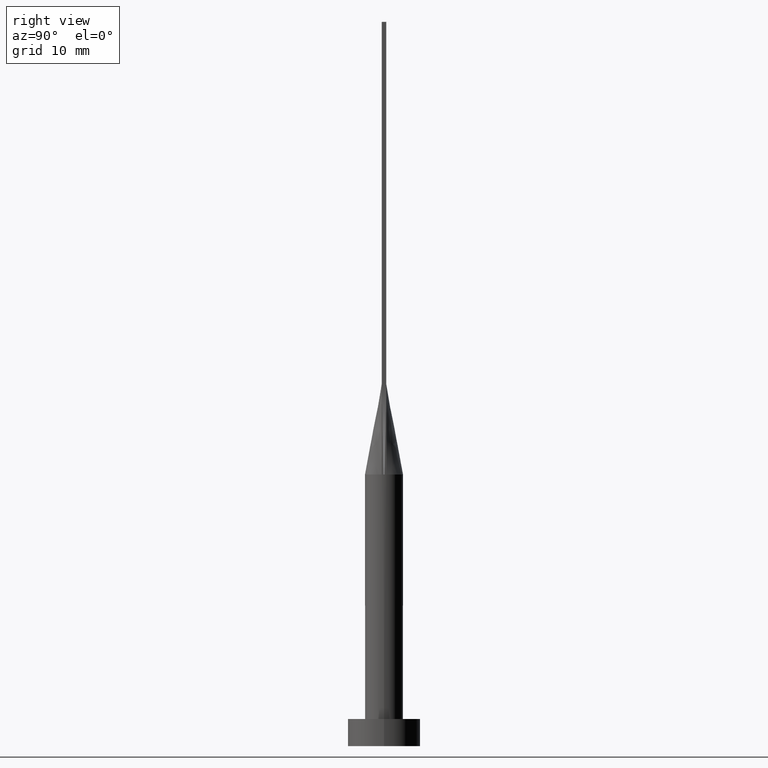
[diagram: clean part render]
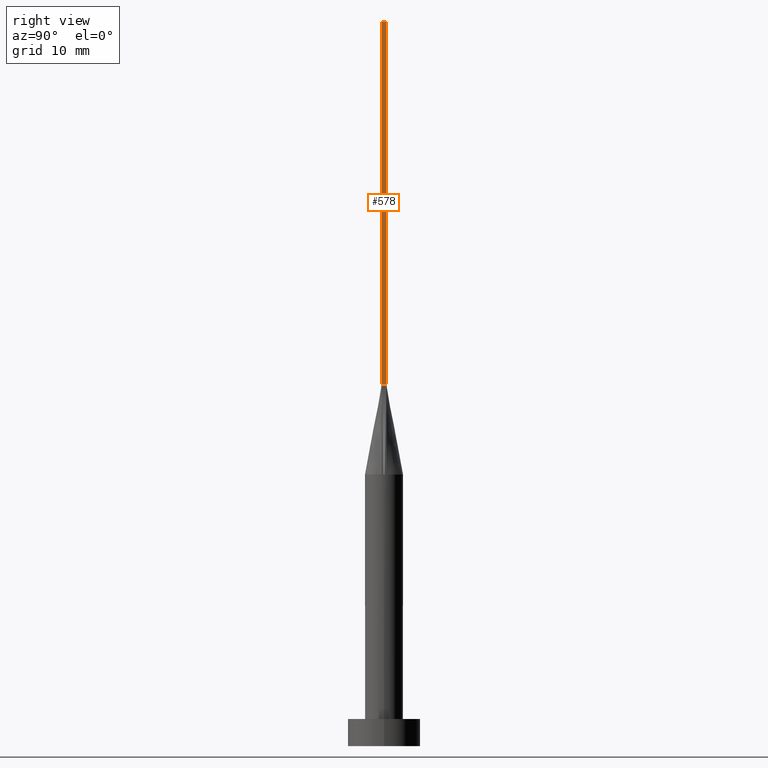
[diagram: same view with one face highlighted and labeled with its STEP entity id]
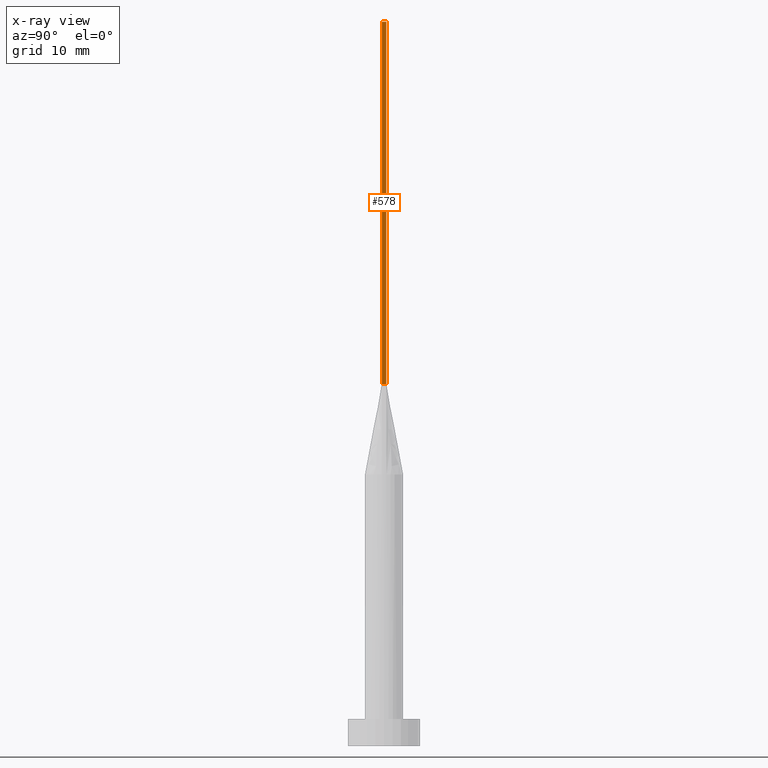
[diagram: x-ray of the same camera — body ghosted, the highlighted face saturated]
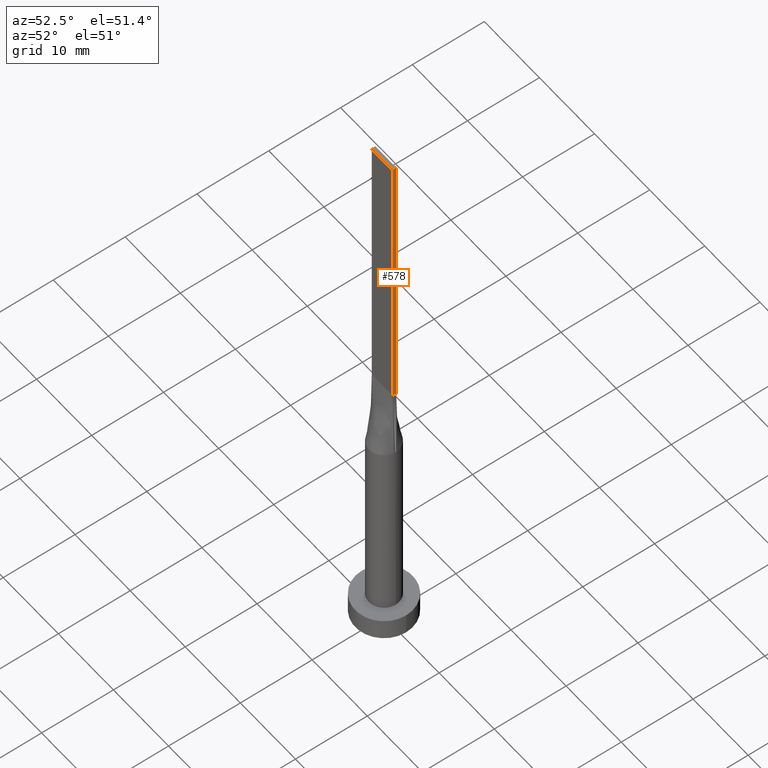
[diagram: same view with one face highlighted and labeled with its STEP entity id]
A machine part, right view. The second image highlights one B-rep face of the part: STEP entity #578.
The next image is the same camera in x-ray: the body ghosted, the highlighted face saturated — about 0% of this face is hidden behind the body in this view.
A second angle (auxiliary view) of the same face is appended — the face is thin or edge-on in the first view.
In plain terms, the highlighted planar face has unit normal (-1, 0, 0).
Its self-contained STEP definition (entity closure, byte-faithful):
#7 = ORIENTED_EDGE ( 'NONE', *, *, #185, .T. ) ;
#58 = LINE ( 'NONE', #168, #330 ) ;
#66 = FACE_OUTER_BOUND ( 'NONE', #135, .T. ) ;
#107 = CARTESIAN_POINT ( 'NONE',  ( 1.899999999999999911, 0.2500000000000002220, 80.00000000000000000 ) ) ;
#127 = ORIENTED_EDGE ( 'NONE', *, *, #187, .T. ) ;
#129 = ORIENTED_EDGE ( 'NONE', *, *, #433, .F. ) ;
#135 = EDGE_LOOP ( 'NONE', ( #127, #401, #129, #7 ) ) ;
#155 = CARTESIAN_POINT ( 'NONE',  ( 1.899999999999999023, -0.2499999999999997780, 80.00000000000000000 ) ) ;
#156 = DIRECTION ( 'NONE',  ( -1.000000000000000000, 1.734723475976807094E-15, 0.000000000000000000 ) ) ;
#168 = CARTESIAN_POINT ( 'NONE',  ( 1.899999999999999911, 0.2500000000000002220, 40.00000000000000000 ) ) ;
#173 = VERTEX_POINT ( 'NONE', #203 ) ;
#184 = DIRECTION ( 'NONE',  ( 1.734723475976807094E-15, 1.000000000000000000, 0.000000000000000000 ) ) ;
#185 = EDGE_CURVE ( 'NONE', #173, #524, #531, .T. ) ;
#187 = EDGE_CURVE ( 'NONE', #524, #446, #58, .T. ) ;
#188 = VECTOR ( 'NONE', #479, 1000.000000000000000 ) ;
#203 = CARTESIAN_POINT ( 'NONE',  ( 1.899999999999999023, -0.2499999999999997780, 80.00000000000000000 ) ) ;
#219 = CARTESIAN_POINT ( 'NONE',  ( 1.899999999999999911, 0.2500000000000002220, 80.00000000000000000 ) ) ;
#227 = AXIS2_PLACEMENT_3D ( 'NONE', #515, #156, #241 ) ;
#241 = DIRECTION ( 'NONE',  ( -1.734723475976807094E-15, -1.000000000000000000, 0.000000000000000000 ) ) ;
#288 = EDGE_CURVE ( 'NONE', #567, #446, #509, .T. ) ;
#303 = CARTESIAN_POINT ( 'NONE',  ( 1.899999999999999023, -0.2499999999999997780, 80.00000000000000000 ) ) ;
#311 = CARTESIAN_POINT ( 'NONE',  ( 1.899999999999999911, 0.2500000000000002220, 40.00000000000000000 ) ) ;
#330 = VECTOR ( 'NONE', #387, 1000.000000000000000 ) ;
#372 = PLANE ( 'NONE',  #227 ) ;
#387 = DIRECTION ( 'NONE',  ( -0.000000000000000000, 1.000000000000000000, -0.000000000000000000 ) ) ;
#392 = VECTOR ( 'NONE', #473, 1000.000000000000000 ) ;
#401 = ORIENTED_EDGE ( 'NONE', *, *, #288, .F. ) ;
#427 = VECTOR ( 'NONE', #184, 1000.000000000000000 ) ;
#433 = EDGE_CURVE ( 'NONE', #173, #567, #548, .T. ) ;
#446 = VERTEX_POINT ( 'NONE', #311 ) ;
#473 = DIRECTION ( 'NONE',  ( -0.000000000000000000, -0.000000000000000000, -1.000000000000000000 ) ) ;
#479 = DIRECTION ( 'NONE',  ( -0.000000000000000000, -0.000000000000000000, -1.000000000000000000 ) ) ;
#509 = LINE ( 'NONE', #107, #392 ) ;
#515 = CARTESIAN_POINT ( 'NONE',  ( 1.899999999999999023, -0.2499999999999997780, 80.00000000000000000 ) ) ;
#524 = VERTEX_POINT ( 'NONE', #568 ) ;
#531 = LINE ( 'NONE', #303, #188 ) ;
#548 = LINE ( 'NONE', #155, #427 ) ;
#567 = VERTEX_POINT ( 'NONE', #219 ) ;
#568 = CARTESIAN_POINT ( 'NONE',  ( 1.899999999999999023, -0.2499999999999997780, 40.00000000000000000 ) ) ;
#578 = ADVANCED_FACE ( 'NONE', ( #66 ), #372, .F. ) ;